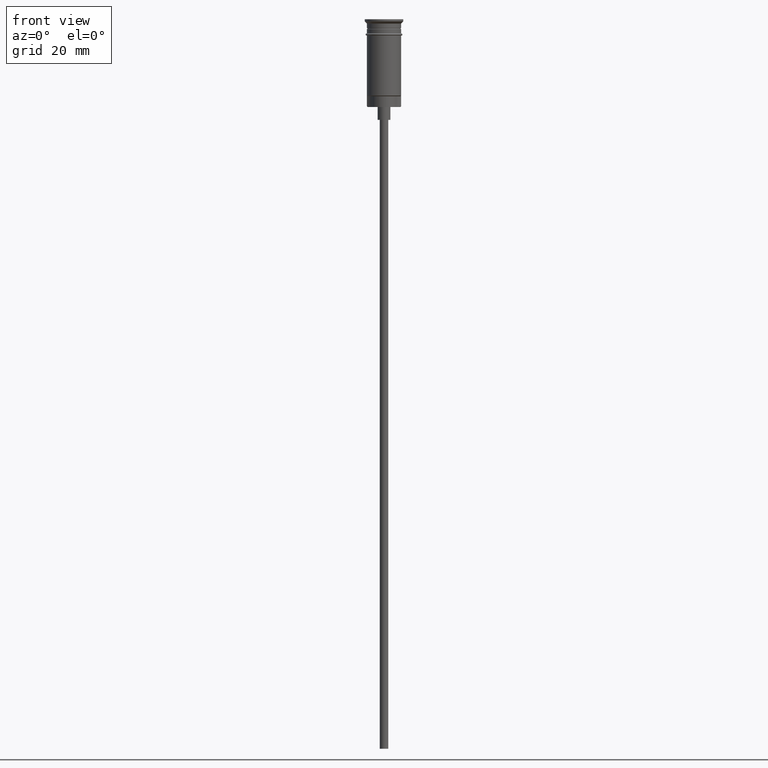
[diagram: clean part render]
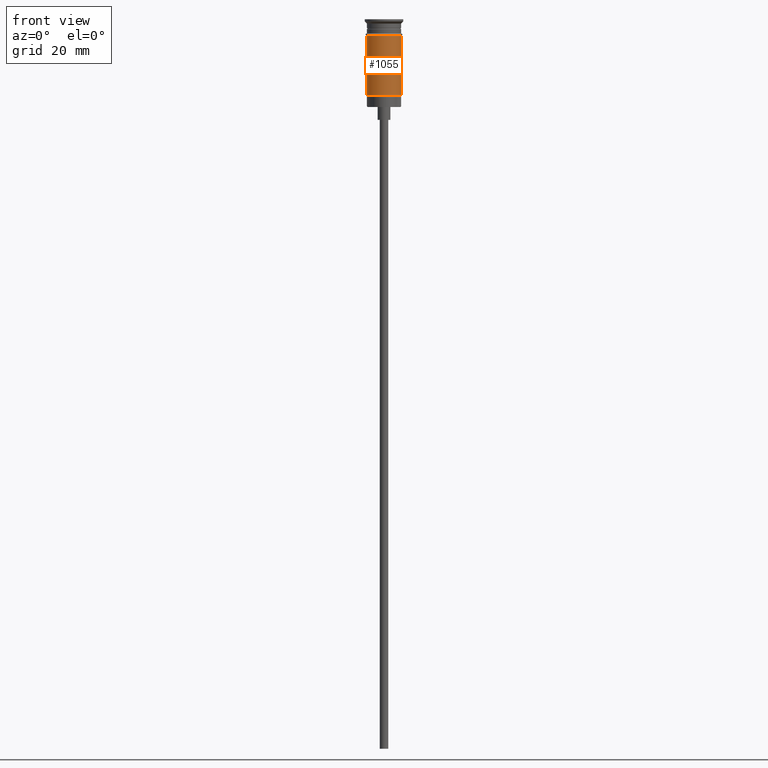
[diagram: same view with one face highlighted and labeled with its STEP entity id]
A machine part, front view. The second image highlights one B-rep face of the part: STEP entity #1055.
In plain terms, the highlighted cylindrical surface (edge-blend (fillet) strip) has radius 4 mm, axis along (-0, -0, 1).
Its self-contained STEP definition (entity closure, byte-faithful):
#6 = VERTEX_POINT ( 'NONE', #1461 ) ;
#33 = CARTESIAN_POINT ( 'NONE',  ( 0.000000000000000000, 0.000000000000000000, 0.000000000000000000 ) ) ;
#250 = CARTESIAN_POINT ( 'NONE',  ( -3.999999999999997335, 0.000000000000000000, -17.79999999999998295 ) ) ;
#267 = CARTESIAN_POINT ( 'NONE',  ( 4.000000000000000000, 0.000000000000000000, 0.000000000000000000 ) ) ;
#281 = DIRECTION ( 'NONE',  ( -0.000000000000000000, -0.000000000000000000, 1.000000000000000000 ) ) ;
#325 = VERTEX_POINT ( 'NONE', #1063 ) ;
#376 = DIRECTION ( 'NONE',  ( -0.000000000000000000, -0.000000000000000000, 1.000000000000000000 ) ) ;
#391 = VECTOR ( 'NONE', #651, 1000.000000000000000 ) ;
#438 = ORIENTED_EDGE ( 'NONE', *, *, #656, .F. ) ;
#466 = VERTEX_POINT ( 'NONE', #250 ) ;
#506 = ORIENTED_EDGE ( 'NONE', *, *, #1272, .F. ) ;
#651 = DIRECTION ( 'NONE',  ( -0.000000000000000000, -0.000000000000000000, 1.000000000000000000 ) ) ;
#656 = EDGE_CURVE ( 'NONE', #466, #325, #1033, .T. ) ;
#658 = CYLINDRICAL_SURFACE ( 'NONE', #1415, 4.000000000000000000 ) ;
#816 = CIRCLE ( 'NONE', #1495, 4.000000000000000000 ) ;
#892 = AXIS2_PLACEMENT_3D ( 'NONE', #978, #376, #1600 ) ;
#895 = DIRECTION ( 'NONE',  ( 1.000000000000000000, 0.000000000000000000, 0.000000000000000000 ) ) ;
#943 = DIRECTION ( 'NONE',  ( -1.000000000000000000, 0.000000000000000000, 0.000000000000000000 ) ) ;
#978 = CARTESIAN_POINT ( 'NONE',  ( 0.000000000000000000, 0.000000000000000000, -3.799999999999998490 ) ) ;
#979 = EDGE_LOOP ( 'NONE', ( #438, #1200, #1011, #506 ) ) ;
#1011 = ORIENTED_EDGE ( 'NONE', *, *, #1407, .T. ) ;
#1033 = LINE ( 'NONE', #1251, #391 ) ;
#1055 = ADVANCED_FACE ( 'NONE', ( #1378 ), #658, .T. ) ;
#1060 = CARTESIAN_POINT ( 'NONE',  ( 0.000000000000000000, 0.000000000000000000, -17.79999999999998295 ) ) ;
#1063 = CARTESIAN_POINT ( 'NONE',  ( -4.000000000000000000, 4.898587196589412829E-16, -3.799999999999998490 ) ) ;
#1125 = VECTOR ( 'NONE', #281, 1000.000000000000000 ) ;
#1178 = CARTESIAN_POINT ( 'NONE',  ( 4.000000000000000000, 4.898587196589412829E-16, -17.79999999999998295 ) ) ;
#1180 = EDGE_CURVE ( 'NONE', #466, #1566, #816, .T. ) ;
#1200 = ORIENTED_EDGE ( 'NONE', *, *, #1180, .T. ) ;
#1238 = CIRCLE ( 'NONE', #892, 4.000000000000000000 ) ;
#1251 = CARTESIAN_POINT ( 'NONE',  ( -4.000000000000000000, 4.898587196589412829E-16, 0.000000000000000000 ) ) ;
#1259 = DIRECTION ( 'NONE',  ( -0.000000000000000000, -0.000000000000000000, 1.000000000000000000 ) ) ;
#1272 = EDGE_CURVE ( 'NONE', #325, #6, #1238, .T. ) ;
#1356 = LINE ( 'NONE', #267, #1125 ) ;
#1378 = FACE_OUTER_BOUND ( 'NONE', #979, .T. ) ;
#1407 = EDGE_CURVE ( 'NONE', #1566, #6, #1356, .T. ) ;
#1409 = DIRECTION ( 'NONE',  ( -0.000000000000000000, -0.000000000000000000, 1.000000000000000000 ) ) ;
#1415 = AXIS2_PLACEMENT_3D ( 'NONE', #33, #1259, #895 ) ;
#1461 = CARTESIAN_POINT ( 'NONE',  ( 4.000000000000000000, 0.000000000000000000, -3.799999999999998490 ) ) ;
#1495 = AXIS2_PLACEMENT_3D ( 'NONE', #1060, #1409, #943 ) ;
#1566 = VERTEX_POINT ( 'NONE', #1178 ) ;
#1600 = DIRECTION ( 'NONE',  ( 1.000000000000000000, 0.000000000000000000, 0.000000000000000000 ) ) ;